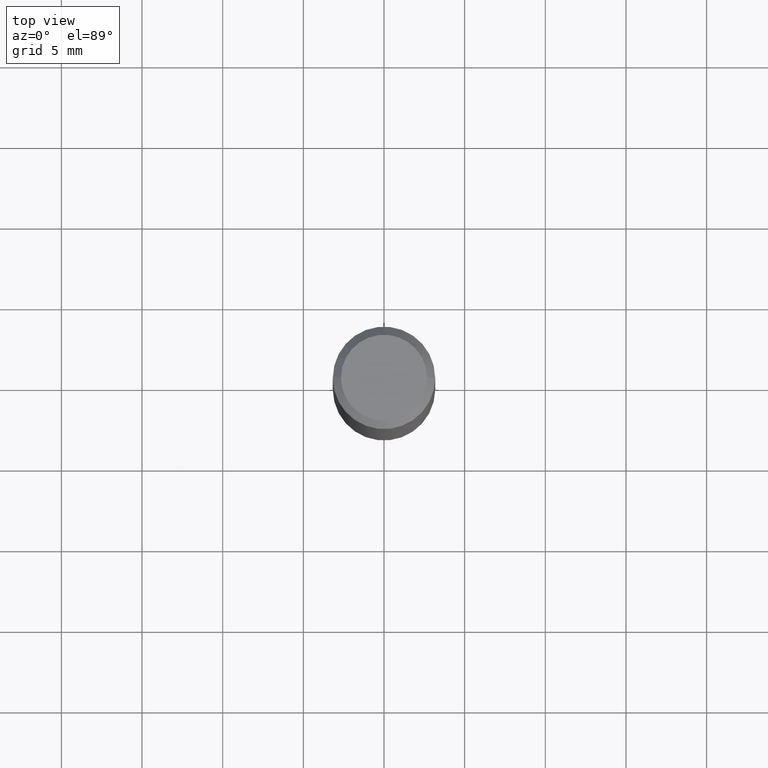
[diagram: clean part render]
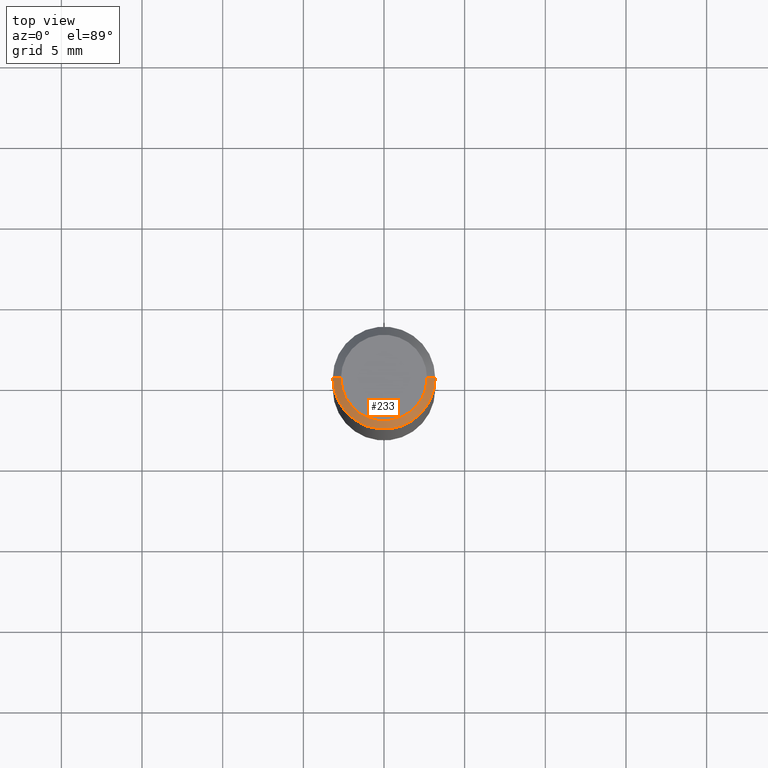
[diagram: same view with one face highlighted and labeled with its STEP entity id]
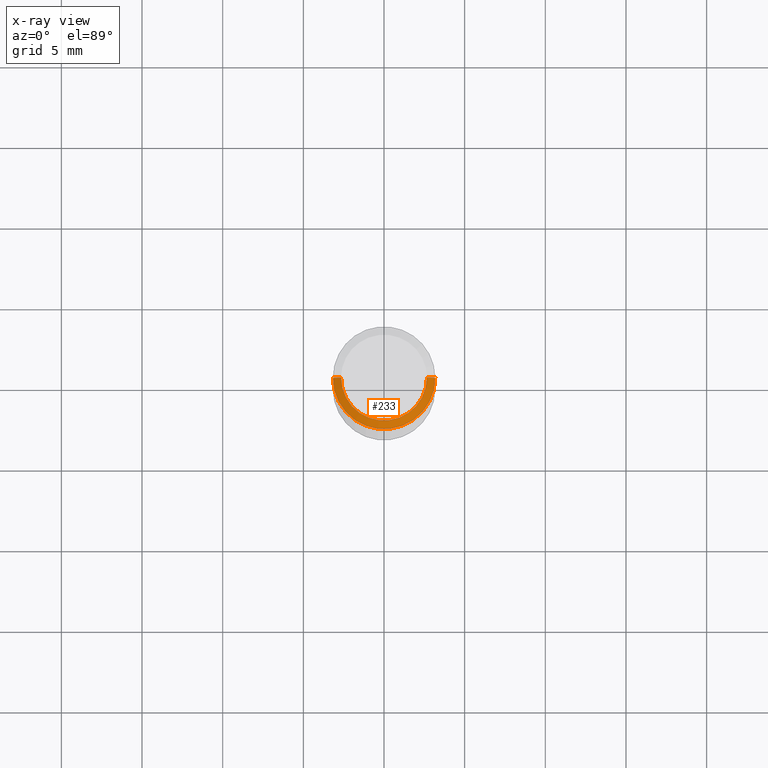
[diagram: x-ray of the same camera — body ghosted, the highlighted face saturated]
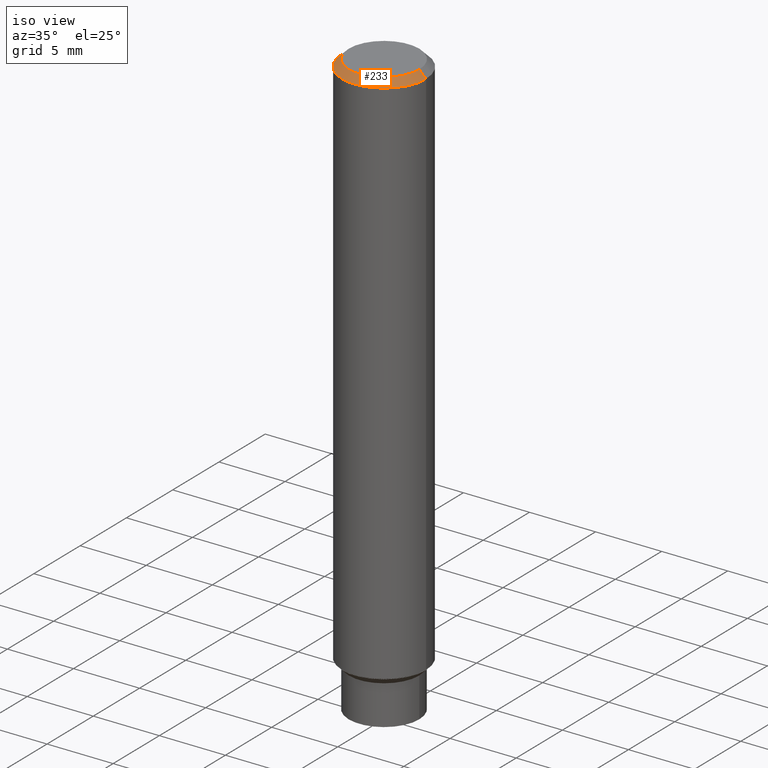
[diagram: same view with one face highlighted and labeled with its STEP entity id]
A machine part, top view. The second image highlights one B-rep face of the part: STEP entity #233.
The next image is the same camera in x-ray: the body ghosted, the highlighted face saturated — about 0% of this face is hidden behind the body in this view.
A second angle (iso view) of the same face is appended — the face is thin or edge-on in the first view.
In plain terms, the highlighted conical surface has half-angle 45 deg.
Its self-contained STEP definition (entity closure, byte-faithful):
#13 = CARTESIAN_POINT ( 'NONE',  ( 4.890937612370288047E-31, -6.982962677686311331E-17, -0.02000000000000005940 ) ) ;
#19 = DIRECTION ( 'NONE',  ( 2.445468806185136597E-29, -3.491481338843145583E-15, -1.000000000000000000 ) ) ;
#97 = VERTEX_POINT ( 'NONE', #160 ) ;
#102 = AXIS2_PLACEMENT_3D ( 'NONE', #604, #310, #208 ) ;
#109 = CARTESIAN_POINT ( 'NONE',  ( 0.1250000000000000000, -9.273918764983045463E-16, -0.02000000000000005940 ) ) ;
#119 = EDGE_LOOP ( 'NONE', ( #290, #240, #630, #429 ) ) ;
#130 = VERTEX_POINT ( 'NONE', #109 ) ;
#160 = CARTESIAN_POINT ( 'NONE',  ( -0.1049999999999999545, 7.681258945454889832E-16, -5.249639473182164475E-30 ) ) ;
#167 = AXIS2_PLACEMENT_3D ( 'NONE', #621, #521, #379 ) ;
#183 = DIRECTION ( 'NONE',  ( 0.7071067811865472397, -7.319954787623254468E-15, -0.7071067811865477948 ) ) ;
#208 = DIRECTION ( 'NONE',  ( 1.000000000000000000, -6.982962677686266711E-15, 0.000000000000000000 ) ) ;
#221 = LINE ( 'NONE', #512, #409 ) ;
#222 = VECTOR ( 'NONE', #183, 39.37007874015748143 ) ;
#233 = ADVANCED_FACE ( 'NONE', ( #510 ), #305, .T. ) ;
#240 = ORIENTED_EDGE ( 'NONE', *, *, #467, .F. ) ;
#255 = EDGE_CURVE ( 'NONE', #627, #130, #537, .T. ) ;
#279 = CARTESIAN_POINT ( 'NONE',  ( 0.1250000000000000000, -9.273918764983045463E-16, -0.02000000000000005940 ) ) ;
#290 = ORIENTED_EDGE ( 'NONE', *, *, #314, .F. ) ;
#300 = DIRECTION ( 'NONE',  ( -1.000000000000000000, 6.982962677686266711E-15, 0.000000000000000000 ) ) ;
#305 = CONICAL_SURFACE ( 'NONE', #578, 0.1250000000000000000, 0.7853981633974479459 ) ;
#310 = DIRECTION ( 'NONE',  ( -2.445468806185136597E-29, 3.491481338843145583E-15, 1.000000000000000000 ) ) ;
#314 = EDGE_CURVE ( 'NONE', #542, #130, #317, .T. ) ;
#317 = LINE ( 'NONE', #279, #222 ) ;
#352 = CARTESIAN_POINT ( 'NONE',  ( -0.1250000000000000000, 8.030407079339202378E-16, -0.02000000000000005940 ) ) ;
#371 = EDGE_CURVE ( 'NONE', #97, #627, #221, .T. ) ;
#378 = CIRCLE ( 'NONE', #167, 0.1049999999999999545 ) ;
#379 = DIRECTION ( 'NONE',  ( 1.000000000000000000, -6.982962677686265922E-15, 4.876176775795935793E-29 ) ) ;
#409 = VECTOR ( 'NONE', #424, 39.37007874015748143 ) ;
#424 = DIRECTION ( 'NONE',  ( -0.7071067811865472397, 2.468850131082253905E-15, -0.7071067811865477948 ) ) ;
#429 = ORIENTED_EDGE ( 'NONE', *, *, #255, .T. ) ;
#445 = CARTESIAN_POINT ( 'NONE',  ( 0.1049999999999999545, -8.238720831321574672E-16, 5.444276250344148664E-30 ) ) ;
#467 = EDGE_CURVE ( 'NONE', #97, #542, #378, .T. ) ;
#510 = FACE_OUTER_BOUND ( 'NONE', #119, .T. ) ;
#512 = CARTESIAN_POINT ( 'NONE',  ( -0.1250000000000000000, 8.030407079339202378E-16, -0.02000000000000005940 ) ) ;
#521 = DIRECTION ( 'NONE',  ( -2.445468806185136597E-29, 3.491481338843145583E-15, 1.000000000000000000 ) ) ;
#537 = CIRCLE ( 'NONE', #102, 0.1250000000000000000 ) ;
#542 = VERTEX_POINT ( 'NONE', #445 ) ;
#578 = AXIS2_PLACEMENT_3D ( 'NONE', #13, #19, #300 ) ;
#604 = CARTESIAN_POINT ( 'NONE',  ( 4.890937612370288047E-31, -6.982962677686311331E-17, -0.02000000000000005940 ) ) ;
#621 = CARTESIAN_POINT ( 'NONE',  ( 0.000000000000000000, 0.000000000000000000, 0.000000000000000000 ) ) ;
#627 = VERTEX_POINT ( 'NONE', #352 ) ;
#630 = ORIENTED_EDGE ( 'NONE', *, *, #371, .T. ) ;